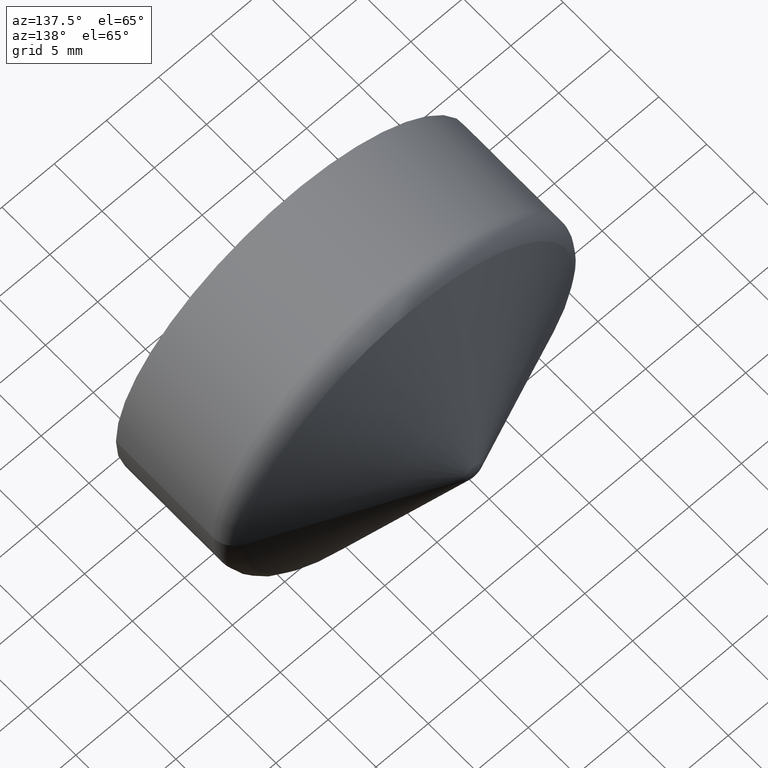
[diagram: clean part render]
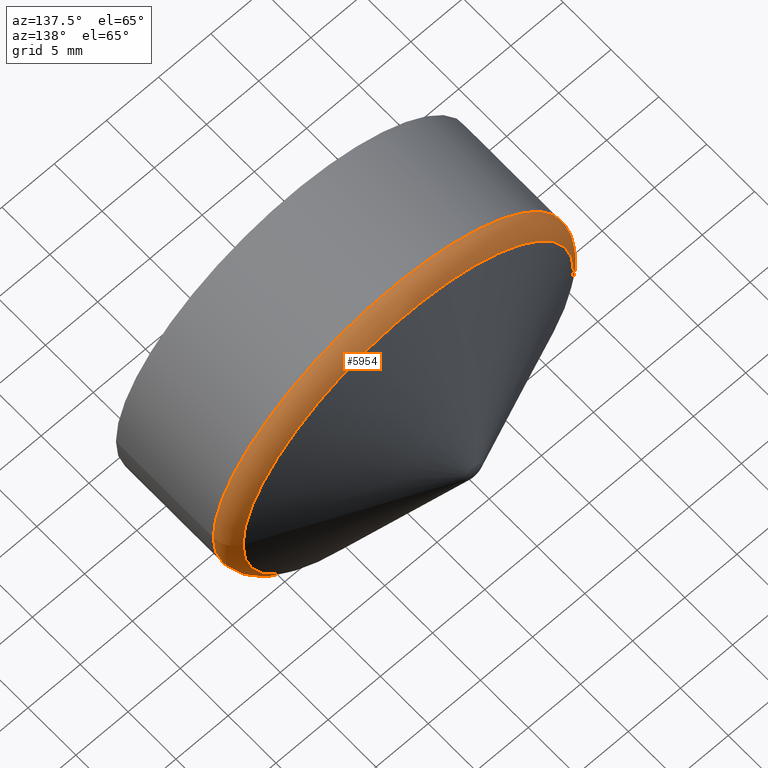
[diagram: same view with one face highlighted and labeled with its STEP entity id]
A machine part, auxiliary view. The second image highlights one B-rep face of the part: STEP entity #5954.
In plain terms, the highlighted toroidal blend (fillet) surface has major radius 15 mm and minor (blend) radius 2 mm.
Its self-contained STEP definition (entity closure, byte-faithful):
#308 = EDGE_CURVE ( 'NONE', #1363, #1363, #2156, .T. ) ;
#403 = CARTESIAN_POINT ( 'NONE',  ( 17.00000000000000000, 10.17937860718205400, 0.0000000000000000000 ) ) ;
#1269 = CARTESIAN_POINT ( 'NONE',  ( 1.800357625867530200E-016, 10.17937860718205400, 0.0000000000000000000 ) ) ;
#1363 = VERTEX_POINT ( 'NONE', #403 ) ;
#1561 = DIRECTION ( 'NONE',  ( 2.041077998578925000E-017, -1.000000000000000000, -0.0000000000000000000 ) ) ;
#2156 = CIRCLE ( 'NONE', #5386, 17.00000000000000000 ) ;
#4517 = ORIENTED_EDGE ( 'NONE', *, *, #5135, .T. ) ;
#4645 = FACE_OUTER_BOUND ( 'NONE', #6712, .T. ) ;
#4735 = DIRECTION ( 'NONE',  ( 2.041077998578925000E-017, -1.000000000000000000, -0.0000000000000000000 ) ) ;
#4985 = CARTESIAN_POINT ( 'NONE',  ( 1.428754599005247300E-016, 12.00000000000000000, 0.0000000000000000000 ) ) ;
#5135 = EDGE_CURVE ( 'NONE', #7537, #7537, #6067, .T. ) ;
#5248 = CARTESIAN_POINT ( 'NONE',  ( 15.82785128133840800, 12.00000000000000000, 0.0000000000000000000 ) ) ;
#5386 = AXIS2_PLACEMENT_3D ( 'NONE', #1269, #4735, #6823 ) ;
#5623 = ORIENTED_EDGE ( 'NONE', *, *, #308, .F. ) ;
#5954 = ADVANCED_FACE ( 'NONE', ( #6897, #4645 ), #7880, .T. ) ;
#6067 = CIRCLE ( 'NONE', #7455, 15.82785128133840800 ) ;
#6217 = DIRECTION ( 'NONE',  ( 1.000000000000000000, 0.0000000000000000000, 0.0000000000000000000 ) ) ;
#6712 = EDGE_LOOP ( 'NONE', ( #5623 ) ) ;
#6823 = DIRECTION ( 'NONE',  ( 1.000000000000000000, 0.0000000000000000000, 0.0000000000000000000 ) ) ;
#6897 = FACE_OUTER_BOUND ( 'NONE', #8641, .T. ) ;
#7040 = DIRECTION ( 'NONE',  ( 2.041077998578925000E-017, -1.000000000000000000, -0.0000000000000000000 ) ) ;
#7080 = DIRECTION ( 'NONE',  ( 1.000000000000000000, 2.041077998578925000E-017, 0.0000000000000000000 ) ) ;
#7455 = AXIS2_PLACEMENT_3D ( 'NONE', #4985, #7040, #6217 ) ;
#7537 = VERTEX_POINT ( 'NONE', #5248 ) ;
#7816 = CARTESIAN_POINT ( 'NONE',  ( 0.0000000000000000000, 10.17937860718205400, 0.0000000000000000000 ) ) ;
#7880 = TOROIDAL_SURFACE ( 'NONE', #8656, 15.00000000000000400, 1.999999999999998700 ) ;
#8641 = EDGE_LOOP ( 'NONE', ( #4517 ) ) ;
#8656 = AXIS2_PLACEMENT_3D ( 'NONE', #7816, #1561, #7080 ) ;